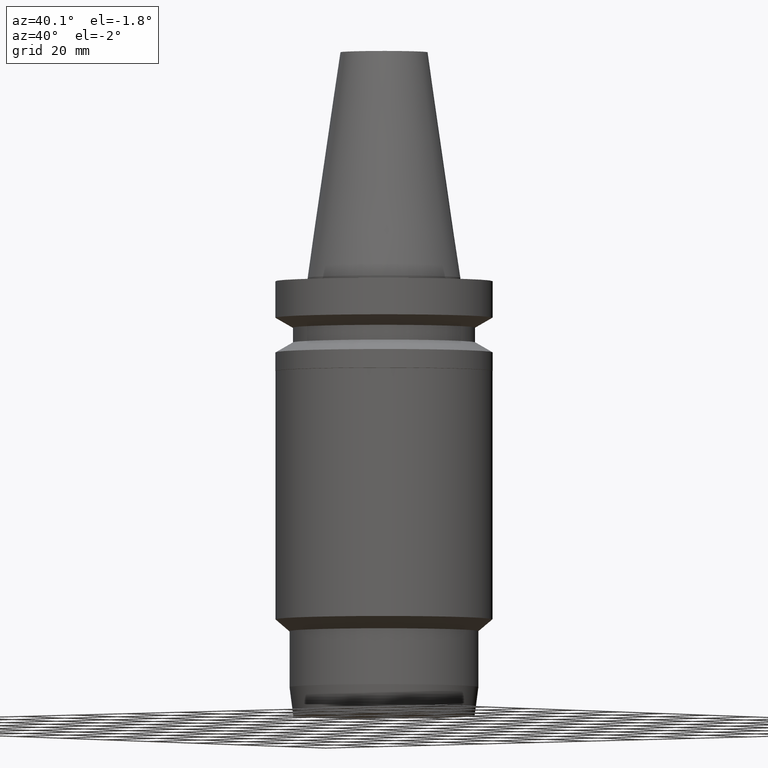
[diagram: clean part render]
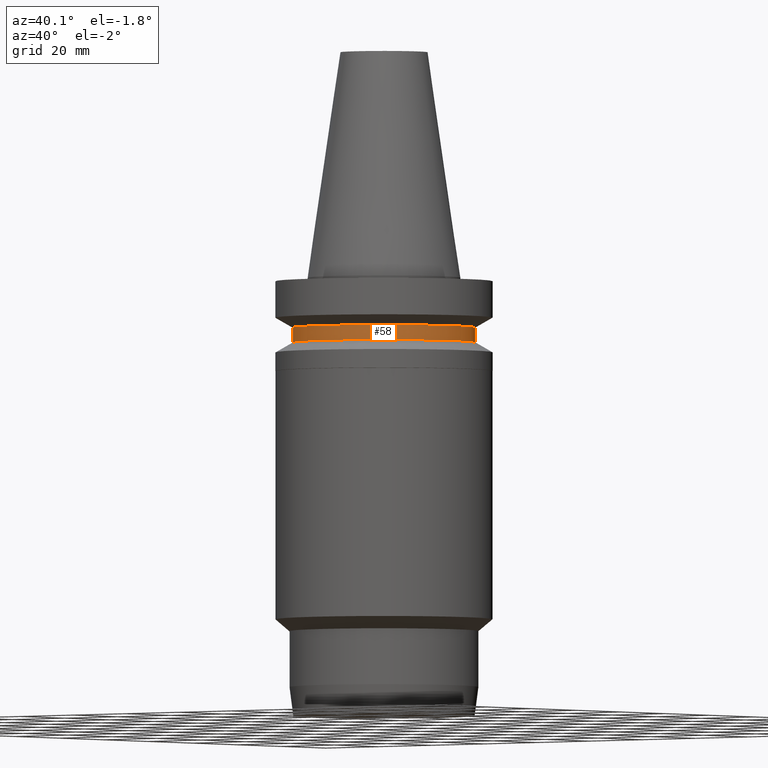
[diagram: same view with one face highlighted and labeled with its STEP entity id]
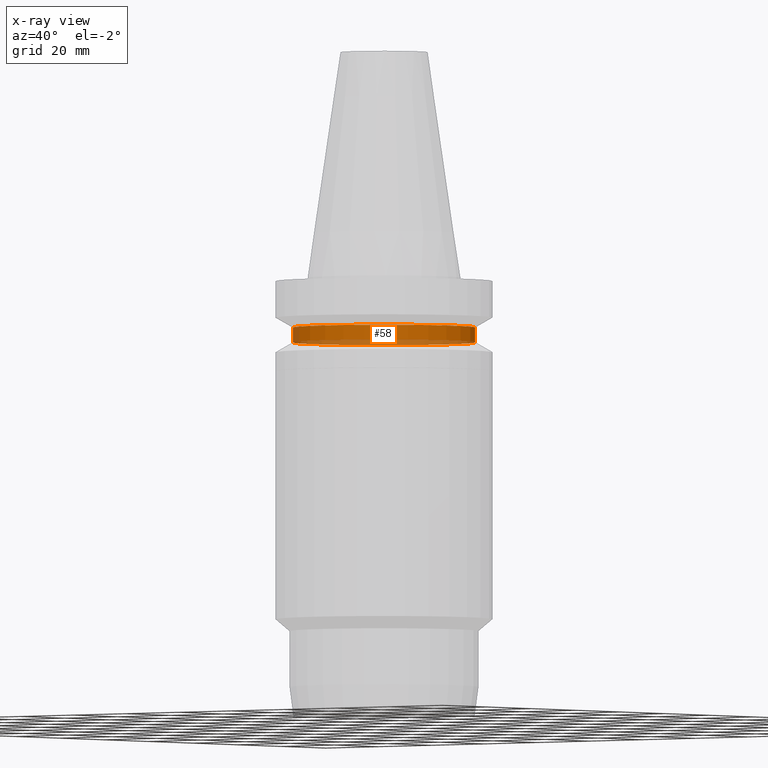
[diagram: x-ray of the same camera — body ghosted, the highlighted face saturated]
A machine part, auxiliary view. The second image highlights one B-rep face of the part: STEP entity #58.
The next image is the same camera in x-ray: the body ghosted, the highlighted face saturated — about 23% of this face is hidden behind the body in this view.
In plain terms, the highlighted cylindrical surface (bore or boss wall) has radius 26.5 mm, axis along (0, -0, -1).
Its self-contained STEP definition (entity closure, byte-faithful):
#58=ADVANCED_FACE('Unnamed[1]',(#151,#152),#153,.T.);
#105=EDGE_CURVE('Unnamed[1]',#224,#224,#225,.T.);
#123=EDGE_CURVE('Unnamed[1]',#253,#253,#254,.T.);
#151=FACE_BOUND('',#277,.T.);
#152=FACE_BOUND('',#278,.T.);
#153=CYLINDRICAL_SURFACE('',#279,26.4999999999997);
#224=VERTEX_POINT('',#368);
#225=CIRCLE('',#369,26.5);
#253=VERTEX_POINT('',#404);
#254=CIRCLE('',#405,26.4999999999994);
#277=EDGE_LOOP('',(#423));
#278=EDGE_LOOP('',(#424));
#279=AXIS2_PLACEMENT_3D('',#425,#426,#427);
#368=CARTESIAN_POINT('',(1.1479681728942E-015,26.5,-18.7477430013855));
#369=AXIS2_PLACEMENT_3D('',#503,#504,#505);
#404=CARTESIAN_POINT('',(8.8494551369045E-016,26.4999999999995,-14.4522569986152));
#405=AXIS2_PLACEMENT_3D('',#536,#537,#538);
#423=ORIENTED_EDGE('',*,*,#105,.F.);
#424=ORIENTED_EDGE('',*,*,#123,.T.);
#425=CARTESIAN_POINT('',(1.01645684329232E-015,3.89897478859819E-014,-16.6000000000003));
#426=DIRECTION('',(6.12323399573677E-017,-4.59983100815415E-016,-1.0));
#427=DIRECTION('',(2.33386888730046E-032,1.0,-4.59983100815415E-016));
#503=CARTESIAN_POINT('',(1.1479681728942E-015,3.80018224004501E-014,-18.7477430013855));
#504=DIRECTION('',(6.12323399573676E-017,-4.59983100815415E-016,-1.0));
#505=DIRECTION('',(2.33386888730046E-032,1.0,-4.59983100815415E-016));
#536=CARTESIAN_POINT('',(8.84945513690449E-016,3.99776733715136E-014,-14.4522569986152));
#537=DIRECTION('',(6.12323399573677E-017,-4.59983100815415E-016,-1.0));
#538=DIRECTION('',(2.33386888730046E-032,1.0,-4.59983100815415E-016));